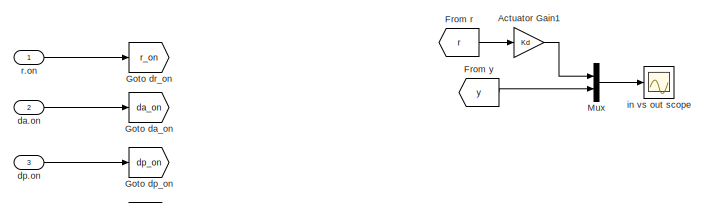
[diagram: root canvas - part 1/3, top left region]
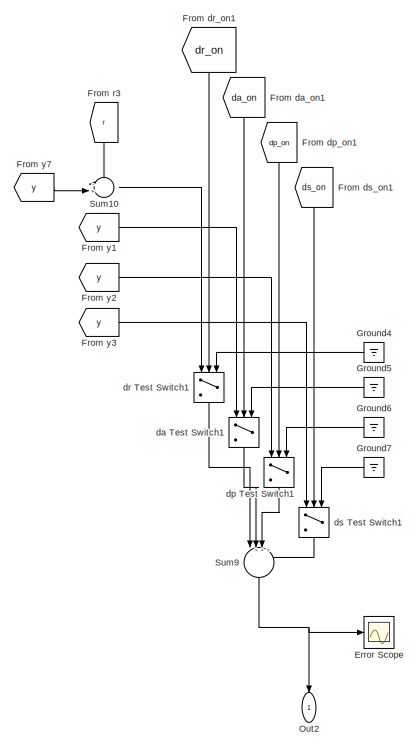
[diagram: root canvas - part 2/3, right side, full height]
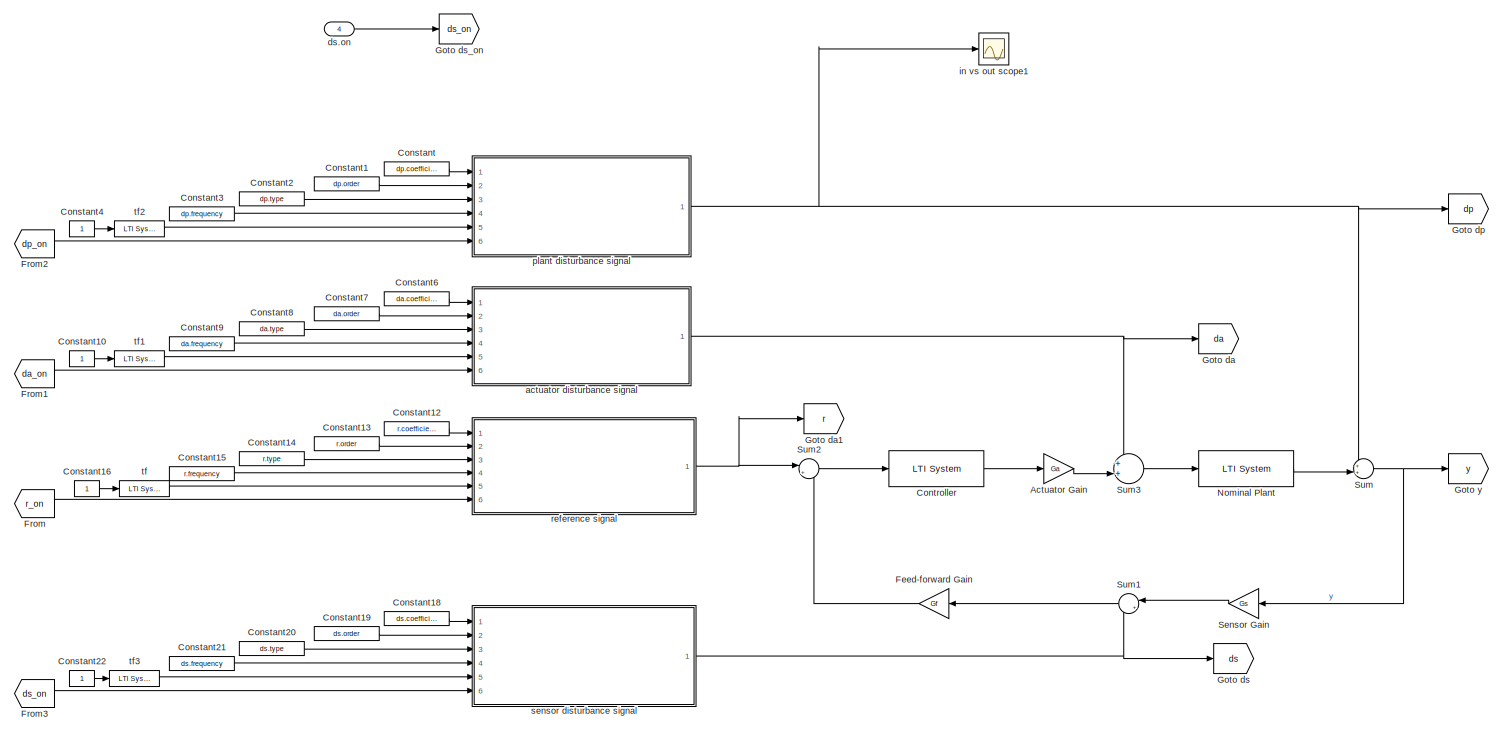
[diagram: root canvas - part 3/3, most of the canvas]
MODEL system_model_script_interactive
KIND model
BLOCK [Gain] Actuator Gain
  Gain = Ga
  OutDataTypeMode = Inherit via internal rule
  OutDataTypeStr = Inherit: Inherit via internal rule
  ParamDataTypeStr = Inherit: Inherit via internal rule
  ParameterDataTypeMode = Inherit via internal rule
  SID = 10
  SaturateOnIntegerOverflow = off
BLOCK [Gain] Actuator Gain1
  Gain = Kd
  OutDataTypeMode = Inherit via internal rule
  OutDataTypeStr = Inherit: Inherit via internal rule
  ParamDataTypeStr = Inherit: Inherit via internal rule
  ParameterDataTypeMode = Inherit via internal rule
  SID = 271
  SaturateOnIntegerOverflow = off
BLOCK [Constant] Constant
  OutDataType = fixdt(1, 16)
  OutScaling = 2^0
  SID = 186
  Value = dp.coefficient
BLOCK [Constant] Constant1
  OutDataType = fixdt(1, 16)
  OutScaling = 2^0
  SID = 188
  Value = dp.order
BLOCK [Constant] Constant10
  OutDataType = fixdt(1, 16)
  OutScaling = 2^0
  SID = 223
BLOCK [Constant] Constant12
  OutDataType = fixdt(1, 16)
  OutScaling = 2^0
  SID = 206
  Value = r.coefficient
BLOCK [Constant] Constant13
  OutDataType = fixdt(1, 16)
  OutScaling = 2^0
  SID = 207
  Value = r.order
BLOCK [Constant] Constant14
  OutDataType = fixdt(1, 16)
  OutScaling = 2^0
  SID = 208
  Value = r.type
BLOCK [Constant] Constant15
  OutDataType = fixdt(1, 16)
  OutScaling = 2^0
  SID = 209
  Value = r.frequency
BLOCK [Constant] Constant16
  OutDataType = fixdt(1, 16)
  OutScaling = 2^0
  SID = 222
BLOCK [Constant] Constant18
  OutDataType = fixdt(1, 16)
  OutScaling = 2^0
  SID = 212
  Value = ds.coefficient
BLOCK [Constant] Constant19
  OutDataType = fixdt(1, 16)
  OutScaling = 2^0
  SID = 213
  Value = ds.order
BLOCK [Constant] Constant2
  OutDataType = fixdt(1, 16)
  OutScaling = 2^0
  SID = 189
  Value = dp.type
BLOCK [Constant] Constant20
  OutDataType = fixdt(1, 16)
  OutScaling = 2^0
  SID = 214
  Value = ds.type
BLOCK [Constant] Constant21
  OutDataType = fixdt(1, 16)
  OutScaling = 2^0
  SID = 215
  Value = ds.frequency
BLOCK [Constant] Constant22
  OutDataType = fixdt(1, 16)
  OutScaling = 2^0
  SID = 227
BLOCK [Constant] Constant3
  OutDataType = fixdt(1, 16)
  OutScaling = 2^0
  SID = 190
  Value = dp.frequency
BLOCK [Constant] Constant4
  OutDataType = fixdt(1, 16)
  OutScaling = 2^0
  SID = 225
BLOCK [Constant] Constant6
  OutDataType = fixdt(1, 16)
  OutScaling = 2^0
  SID = 200
  Value = da.coefficient
BLOCK [Constant] Constant7
  OutDataType = fixdt(1, 16)
  OutScaling = 2^0
  SID = 201
  Value = da.order
BLOCK [Constant] Constant8
  OutDataType = fixdt(1, 16)
  OutScaling = 2^0
  SID = 202
  Value = da.type
BLOCK [Constant] Constant9
  OutDataType = fixdt(1, 16)
  OutScaling = 2^0
  SID = 203
  Value = da.frequency
BLOCK [Reference] Controller  REF=cstblocks/LTI System
  FunctionWithSeparateData = off
  IC = []
  Ports = [1, 1]
  RTWMemSecDataConstants = Inherit from model
  RTWMemSecDataInternal = Inherit from model
  RTWMemSecDataParameters = Inherit from model
  RTWMemSecFuncExecute = Inherit from model
  RTWMemSecFuncInitTerm = Inherit from model
  SID = 1
  ShowPortLabels = FromPortIcon
  SourceBlock = cstblocks/LTI System
  SourceType = LTI Block
  SystemSampleTime = -1
  sys = Gc.mod.value
BLOCK [Scope] Error Scope
  DataFormat = StructureWithTime
  Floating = off
  LimitDataPoints = off
  NumInputPorts = 1
  Ports = [1]
  SID = 249
  SampleInput = on
  SampleTime = 0
  SaveName = ScopeData1
  TimeRange = 0.5
  YMax = 2.5
  YMin = 0
BLOCK [Gain] Feed-forward Gain
  Gain = Gf
  OutDataTypeMode = Inherit via internal rule
  OutDataTypeStr = Inherit: Inherit via internal rule
  ParamDataTypeStr = Inherit: Inherit via internal rule
  ParameterDataTypeMode = Inherit via internal rule
  SID = 13
  SaturateOnIntegerOverflow = off
BLOCK [From] From
  GotoTag = r_on
  SID = 241
BLOCK [From] From da_on1
  GotoTag = da_on
  SID = 250
BLOCK [From] From dp_on1
  GotoTag = dp_on
  SID = 251
BLOCK [From] From dr_on1
  GotoTag = dr_on
  SID = 252
BLOCK [From] From ds_on1
  GotoTag = ds_on
  SID = 253
BLOCK [From] From r
  GotoTag = r
  SID = 245
BLOCK [From] From r3
  GotoTag = r
  SID = 254
BLOCK [From] From y
  GotoTag = y
  SID = 246
BLOCK [From] From y1
  GotoTag = y
  SID = 255
BLOCK [From] From y2
  GotoTag = y
  SID = 256
BLOCK [From] From y3
  GotoTag = y
  SID = 257
BLOCK [From] From y7
  GotoTag = y
  SID = 258
BLOCK [From] From1
  GotoTag = da_on
  SID = 242
BLOCK [From] From2
  GotoTag = dp_on
  SID = 243
BLOCK [From] From3
  GotoTag = ds_on
  SID = 244
BLOCK [Goto] Goto da
  GotoTag = da
  SID = 219
  TagVisibility = local
BLOCK [Goto] Goto da1
  GotoTag = r
  SID = 232
  TagVisibility = local
BLOCK [Goto] Goto da_on
  GotoTag = da_on
  SID = 237
  TagVisibility = local
BLOCK [Goto] Goto dp
  GotoTag = dp
  SID = 218
  TagVisibility = local
BLOCK [Goto] Goto dp_on
  GotoTag = dp_on
  SID = 238
  TagVisibility = local
BLOCK [Goto] Goto dr_on
  GotoTag = r_on
  SID = 239
  TagVisibility = local
BLOCK [Goto] Goto ds
  GotoTag = ds
  SID = 220
  TagVisibility = local
BLOCK [Goto] Goto ds_on
  GotoTag = ds_on
  SID = 240
  TagVisibility = local
BLOCK [Goto] Goto y
  GotoTag = y
  SID = 53
  TagVisibility = local
BLOCK [Ground] Ground4
  SID = 259
BLOCK [Ground] Ground5
  SID = 260
BLOCK [Ground] Ground6
  SID = 261
BLOCK [Ground] Ground7
  SID = 262
BLOCK [Mux] Mux
  DisplayOption = bar
  Inputs = 2
  Ports = [2, 1]
  SID = 247
BLOCK [Reference] Nominal Plant  REF=cstblocks/LTI System
  FunctionWithSeparateData = off
  IC = []
  Ports = [1, 1]
  RTWMemSecDataConstants = Inherit from model
  RTWMemSecDataInternal = Inherit from model
  RTWMemSecDataParameters = Inherit from model
  RTWMemSecFuncExecute = Inherit from model
  RTWMemSecFuncInitTerm = Inherit from model
  SID = 4
  ShowPortLabels = FromPortIcon
  SourceBlock = cstblocks/LTI System
  SourceType = LTI Block
  SystemSampleTime = -1
  sys = Gp.nominal.tf
BLOCK [Outport] Out2
  IconDisplay = Port number
  OutDataType = fixdt(1, 16)
  OutScaling = 2^0
  SID = 269
BLOCK [Gain] Sensor Gain
  Gain = Gs
  OutDataTypeMode = Inherit via internal rule
  OutDataTypeStr = Inherit: Inherit via internal rule
  ParamDataTypeStr = Inherit: Inherit via internal rule
  ParameterDataTypeMode = Inherit via internal rule
  SID = 12
  SaturateOnIntegerOverflow = off
BLOCK [Sum] Sum
  IconShape = round
  InputSameDT = off
  Inputs = ++|
  OutDataTypeMode = Inherit via internal rule
  OutDataTypeStr = Inherit: Inherit via internal rule
  Ports = [2, 1]
  SID = 14
  SaturateOnIntegerOverflow = off
BLOCK [Sum] Sum1
  IconShape = round
  InputSameDT = off
  Inputs = |++
  OutDataTypeMode = Inherit via internal rule
  OutDataTypeStr = Inherit: Inherit via internal rule
  Ports = [2, 1]
  SID = 15
  SaturateOnIntegerOverflow = off
BLOCK [Sum] Sum10
  IconShape = round
  InputSameDT = off
  Inputs = -+|
  OutDataTypeMode = Inherit via internal rule
  OutDataTypeStr = Inherit: Inherit via internal rule
  Ports = [2, 1]
  SID = 263
  SaturateOnIntegerOverflow = off
BLOCK [Sum] Sum2
  IconShape = round
  InputSameDT = off
  Inputs = |+-
  OutDataTypeMode = Inherit via internal rule
  OutDataTypeStr = Inherit: Inherit via internal rule
  Ports = [2, 1]
  SID = 16
  SaturateOnIntegerOverflow = off
BLOCK [Sum] Sum3
  IconShape = round
  InputSameDT = off
  Inputs = ++|
  OutDataTypeMode = Inherit via internal rule
  OutDataTypeStr = Inherit: Inherit via internal rule
  Ports = [2, 1]
  SID = 17
  SaturateOnIntegerOverflow = off
BLOCK [Sum] Sum9
  IconShape = round
  InputSameDT = off
  Inputs = |++++
  OutDataType = fixdt(1, 16)
  OutDataTypeMode = Inherit via internal rule
  OutDataTypeStr = Inherit: Inherit via internal rule
  OutScaling = 2^0
  Ports = [4, 1]
  SID = 264
  SaturateOnIntegerOverflow = off
BLOCK [ModelReference] actuator disturbance signal
  CopyOfModelName = input_signal
  ModelNameDialog = input_signal
  ModelReferenceVersion = 1.17
  Ports = [6, 1]
  SID = 183
BLOCK [Switch] da Test Switch1
  InputSameDT = off
  SID = 265
  SaturateOnIntegerOverflow = off
  Threshold = 1
BLOCK [Inport] da.on
  IconDisplay = Port number
  OutDataType = fixdt(1, 16)
  OutScaling = 2^0
  Port = 2
  SID = 234
BLOCK [Switch] dp Test Switch1
  InputSameDT = off
  SID = 266
  SaturateOnIntegerOverflow = off
  Threshold = 1
BLOCK [Inport] dp.on
  IconDisplay = Port number
  OutDataType = fixdt(1, 16)
  OutScaling = 2^0
  Port = 3
  SID = 235
BLOCK [Switch] dr Test Switch1
  InputSameDT = off
  SID = 267
  SaturateOnIntegerOverflow = off
  Threshold = 1
BLOCK [Switch] ds Test Switch1
  InputSameDT = off
  SID = 268
  SaturateOnIntegerOverflow = off
  Threshold = 1
BLOCK [Inport] ds.on
  IconDisplay = Port number
  OutDataType = fixdt(1, 16)
  OutScaling = 2^0
  Port = 4
  SID = 236
BLOCK [Scope] in vs out scope
  DataFormat = StructureWithTime
  Floating = off
  LimitDataPoints = off
  NumInputPorts = 1
  Ports = [1]
  SID = 248
  SampleInput = on
  SampleTime = 0
  TimeRange = 0.5
  YMax = 8.3
  YMin = 7.45
BLOCK [Scope] in vs out scope1
  DataFormat = StructureWithTime
  Floating = off
  LimitDataPoints = off
  NumInputPorts = 1
  Ports = [1]
  SID = 270
  SampleInput = on
  SampleTime = 0
  SaveName = ScopeData2
  TimeRange = 0.5
  YMax = 1
  YMin = -1
BLOCK [ModelReference] plant disturbance signal
  CopyOfModelName = input_signal
  ModelNameDialog = input_signal
  ModelReferenceVersion = 1.17
  Ports = [6, 1]
  SID = 184
BLOCK [Inport] r.on
  IconDisplay = Port number
  OutDataType = fixdt(1, 16)
  OutScaling = 2^0
  SID = 233
BLOCK [ModelReference] reference signal
  CopyOfModelName = input_signal
  ModelNameDialog = input_signal
  ModelReferenceVersion = 1.17
  Ports = [6, 1]
  SID = 182
BLOCK [ModelReference] sensor disturbance signal
  CopyOfModelName = input_signal
  ModelNameDialog = input_signal
  ModelReferenceVersion = 1.17
  Ports = [6, 1]
  SID = 185
BLOCK [Reference] tf  REF=cstblocks/LTI System
  FunctionWithSeparateData = off
  IC = []
  Ports = [1, 1]
  RTWMemSecDataConstants = Inherit from model
  RTWMemSecDataInternal = Inherit from model
  RTWMemSecDataParameters = Inherit from model
  RTWMemSecFuncExecute = Inherit from model
  RTWMemSecFuncInitTerm = Inherit from model
  SID = 221
  ShowPortLabels = FromPortIcon
  SourceBlock = cstblocks/LTI System
  SourceType = LTI Block
  SystemSampleTime = -1
  sys = r.tf
BLOCK [Reference] tf1  REF=cstblocks/LTI System
  FunctionWithSeparateData = off
  IC = []
  Ports = [1, 1]
  RTWMemSecDataConstants = Inherit from model
  RTWMemSecDataInternal = Inherit from model
  RTWMemSecDataParameters = Inherit from model
  RTWMemSecFuncExecute = Inherit from model
  RTWMemSecFuncInitTerm = Inherit from model
  SID = 224
  ShowPortLabels = FromPortIcon
  SourceBlock = cstblocks/LTI System
  SourceType = LTI Block
  SystemSampleTime = -1
  sys = da.tf
BLOCK [Reference] tf2  REF=cstblocks/LTI System
  FunctionWithSeparateData = off
  IC = []
  Ports = [1, 1]
  RTWMemSecDataConstants = Inherit from model
  RTWMemSecDataInternal = Inherit from model
  RTWMemSecDataParameters = Inherit from model
  RTWMemSecFuncExecute = Inherit from model
  RTWMemSecFuncInitTerm = Inherit from model
  SID = 226
  ShowPortLabels = FromPortIcon
  SourceBlock = cstblocks/LTI System
  SourceType = LTI Block
  SystemSampleTime = -1
  sys = dp.tf
BLOCK [Reference] tf3  REF=cstblocks/LTI System
  FunctionWithSeparateData = off
  IC = []
  Ports = [1, 1]
  RTWMemSecDataConstants = Inherit from model
  RTWMemSecDataInternal = Inherit from model
  RTWMemSecDataParameters = Inherit from model
  RTWMemSecFuncExecute = Inherit from model
  RTWMemSecFuncInitTerm = Inherit from model
  SID = 228
  ShowPortLabels = FromPortIcon
  SourceBlock = cstblocks/LTI System
  SourceType = LTI Block
  SystemSampleTime = -1
  sys = ds.tf
LINE Actuator Gain1:1 -> Mux:1
LINE Actuator Gain:1 -> Sum3:2
LINE Constant10:1 -> tf1:1
LINE Constant12:1 -> reference signal:1
LINE Constant13:1 -> reference signal:2
LINE Constant14:1 -> reference signal:3
LINE Constant15:1 -> reference signal:4
LINE Constant16:1 -> tf:1
LINE Constant18:1 -> sensor disturbance signal:1
LINE Constant19:1 -> sensor disturbance signal:2
LINE Constant1:1 -> plant disturbance signal:2
LINE Constant20:1 -> sensor disturbance signal:3
LINE Constant21:1 -> sensor disturbance signal:4
LINE Constant22:1 -> tf3:1
LINE Constant2:1 -> plant disturbance signal:3
LINE Constant3:1 -> plant disturbance signal:4
LINE Constant4:1 -> tf2:1
LINE Constant6:1 -> actuator disturbance signal:1
LINE Constant7:1 -> actuator disturbance signal:2
LINE Constant8:1 -> actuator disturbance signal:3
LINE Constant9:1 -> actuator disturbance signal:4
LINE Constant:1 -> plant disturbance signal:1
LINE Controller:1 -> Actuator Gain:1
LINE Feed-forward Gain:1 -> Sum2:2
LINE From da_on1:1 -> da Test Switch1:2
LINE From dp_on1:1 -> dp Test Switch1:2
LINE From dr_on1:1 -> dr Test Switch1:2
LINE From ds_on1:1 -> ds Test Switch1:2
LINE From r3:1 -> Sum10:1
LINE From r:1 -> Actuator Gain1:1
LINE From y1:1 -> da Test Switch1:1
LINE From y2:1 -> dp Test Switch1:1
LINE From y3:1 -> ds Test Switch1:1
LINE From y7:1 -> Sum10:2
LINE From y:1 -> Mux:2
LINE From1:1 -> actuator disturbance signal:6
LINE From2:1 -> plant disturbance signal:6
LINE From3:1 -> sensor disturbance signal:6
LINE From:1 -> reference signal:6
LINE Ground4:1 -> dr Test Switch1:3
LINE Ground5:1 -> da Test Switch1:3
LINE Ground6:1 -> dp Test Switch1:3
LINE Ground7:1 -> ds Test Switch1:3
LINE Mux:1 -> in vs out scope:1
LINE Nominal Plant:1 -> Sum:2
LINE Sensor Gain:1 -> Sum1:1
LINE Sum10:1 -> dr Test Switch1:1
LINE Sum1:1 -> Feed-forward Gain:1
LINE Sum2:1 -> Controller:1
LINE Sum3:1 -> Nominal Plant:1
NET Sum9:1 -> Error Scope:1, Out2:1
NET Sum:1 -> Goto y:1, Sensor Gain:1
NET actuator disturbance signal:1 -> Goto da:1, Sum3:1
LINE da Test Switch1:1 -> Sum9:2
LINE da.on:1 -> Goto da_on:1
LINE dp Test Switch1:1 -> Sum9:3
LINE dp.on:1 -> Goto dp_on:1
LINE dr Test Switch1:1 -> Sum9:1
LINE ds Test Switch1:1 -> Sum9:4
LINE ds.on:1 -> Goto ds_on:1
NET plant disturbance signal:1 -> Goto dp:1, Sum:1, in vs out scope1:1
LINE r.on:1 -> Goto dr_on:1
NET reference signal:1 -> Goto da1:1, Sum2:1
NET sensor disturbance signal:1 -> Goto ds:1, Sum1:2
LINE tf1:1 -> actuator disturbance signal:5
LINE tf2:1 -> plant disturbance signal:5
LINE tf3:1 -> sensor disturbance signal:5
LINE tf:1 -> reference signal:5
note: NET lines group one-source signal fan-out (src -> all destinations, sorted); 1:1 wires keep LINE
